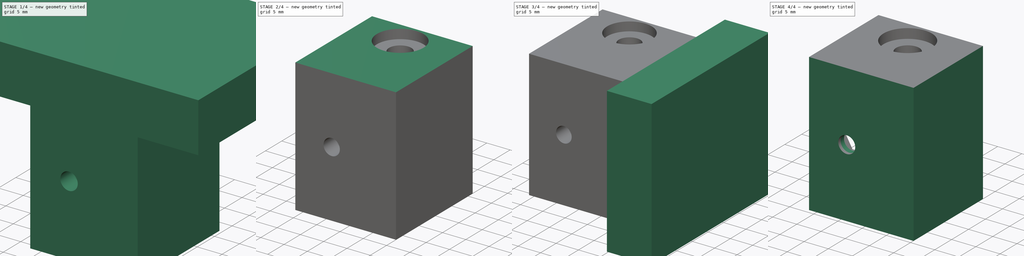
[diagram: build sequence overview — one tinted view per stage of 4, left to right]
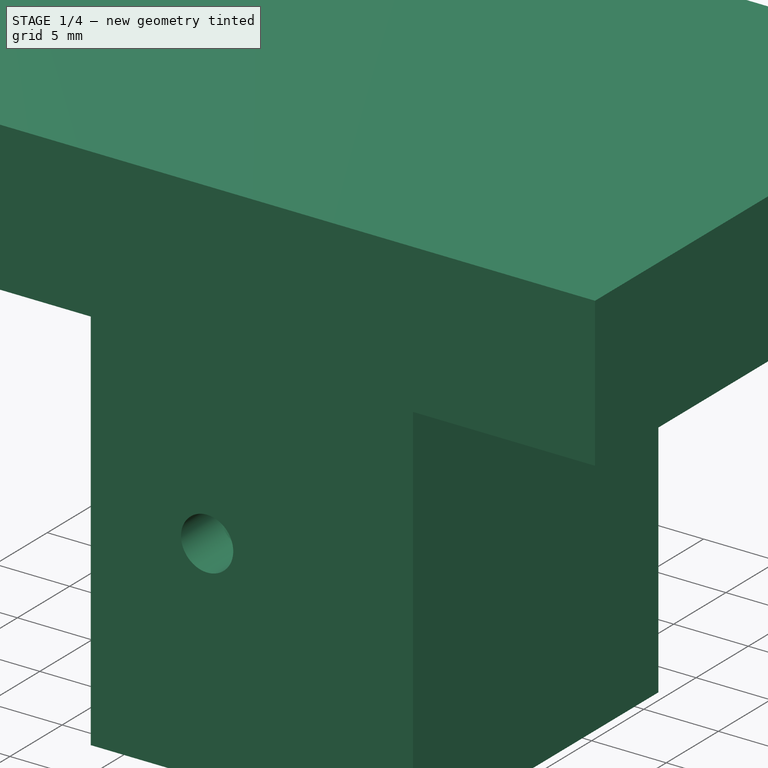
[diagram: stage 1 of 4 — iso view after this stage's code; geometry added in this stage tinted green]
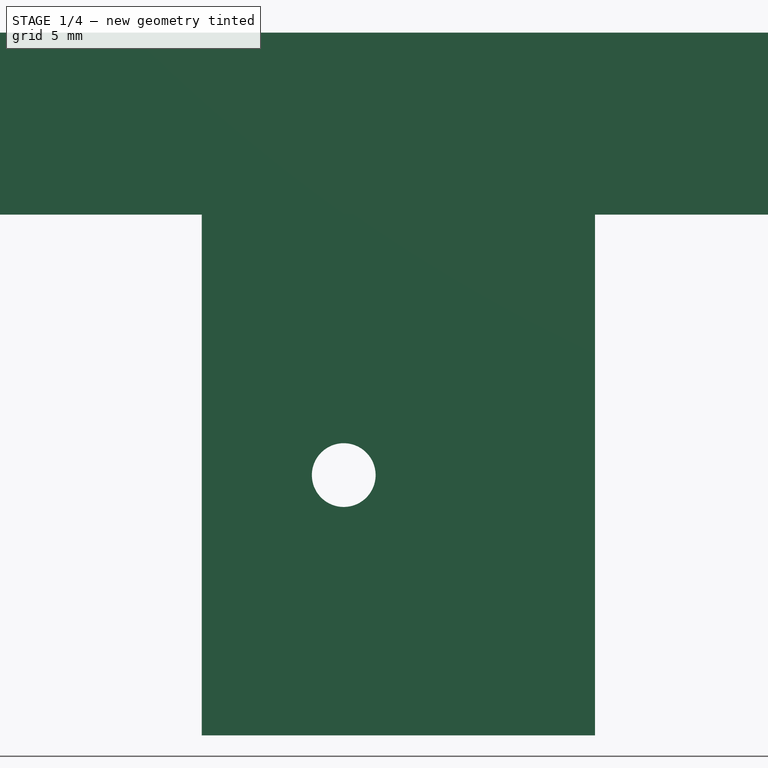
[diagram: stage 1 of 4 — front view after this stage's code; geometry added in this stage tinted green]
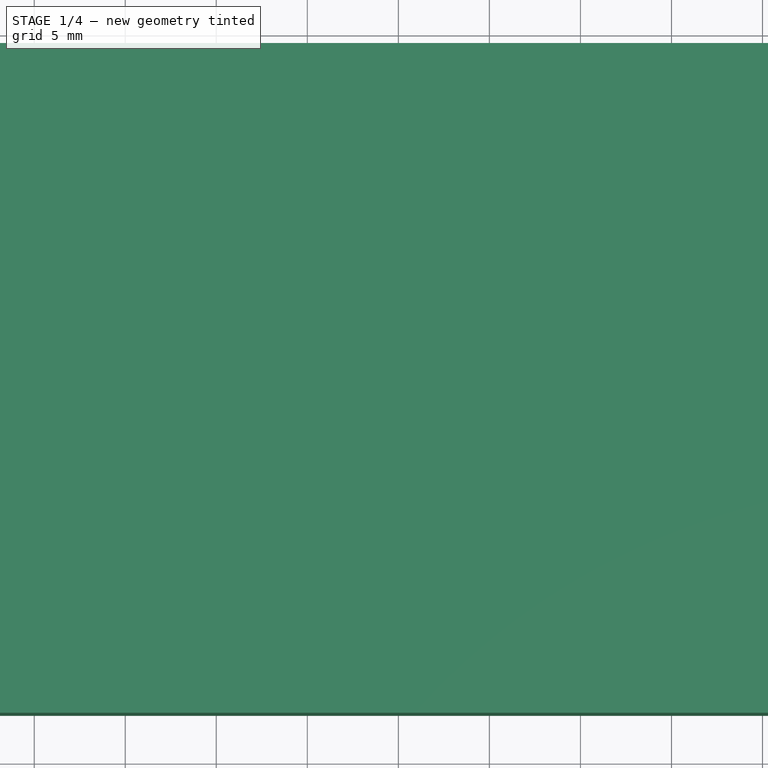
[diagram: stage 1 of 4 — top view after this stage's code; geometry added in this stage tinted green]
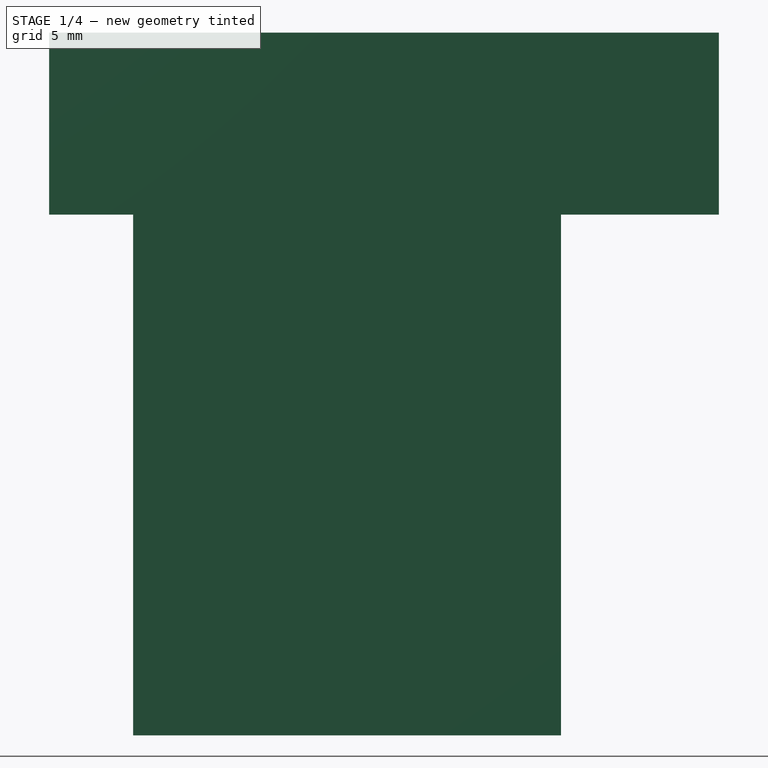
[diagram: stage 1 of 4 — right view after this stage's code; geometry added in this stage tinted green]
FCSTD DOCUMENT  (FreeCAD 2024.1R35694 (Git))
Label: Right_Idler_Cartridge
License: All rights reserved
LicenseURL: http://en.wikipedia.org/wiki/All_rights_reserved
objects: PartDesign::Pad×6, PartDesign::Pocket×5, Sketcher::SketchObject×4, Part::Feature×1, PartDesign::FeatureBase×1, PartDesign::Body×1
note: 29 computed .brp shape members not serialized (recipe doc carries the construction recipe); baked Part::Feature solids carry a one-line shape summary decoded from their .brp

FEATURE [Part::Feature] Part__Feature  label="Right_Idler_Cartridge_001"
  shape: bbox 21.6 x 24.95 x 28.6 mm, 29 faces (baked)
FEATURE [PartDesign::FeatureBase] BaseFeature
  BaseFeature = -> Part__Feature
FEATURE [PartDesign::Pad] Pad
  BaseFeature = -> BaseFeature
  Direction = (0,-617.763,0)
  Length = 3
  Length2 = 10
  Profile = -> BaseFeature [Face28]
  Refine = true
  Type = 0
FEATURE [Sketcher::SketchObject] Sketch
  FullyConstrained = false
  MapMode = 5
  Placement = pos=(0,0,14.2999) rot=(0,0,1;0rad)
  Support = -> [Pad]
  sketch-geometry (4):
    g0: LineSegment StartX=-27.8181 StartY=18.9223 StartZ=0 EndX=-27.8181 EndY=-17.8655 EndZ=0
    g1: LineSegment StartX=-27.8181 StartY=-17.8655 StartZ=0 EndX=26.2406 EndY=-17.8655 EndZ=0
    g2: LineSegment StartX=26.2406 StartY=-17.8655 StartZ=0 EndX=26.2406 EndY=18.9223 EndZ=0
    g3: LineSegment StartX=26.2406 StartY=18.9223 StartZ=0 EndX=-27.8181 EndY=18.9223 EndZ=0
  constraints (8):
    c: Coincident(g0,g1)
    c: Coincident(g1,g2)
    c: Coincident(g2,g3)
    c: Coincident(g3,g0)
    c: Vertical(g0)
    c: Vertical(g2)
    c: Horizontal(g1)
    c: Horizontal(g3)
FEATURE [PartDesign::Pad] Pad001
  BaseFeature = -> Pad
  Direction = (0,0,1)
  Length = 10
  Length2 = 10
  Profile = -> Sketch
  ReferenceAxis = -> Sketch [N_Axis]
  Refine = true
  Type = 0
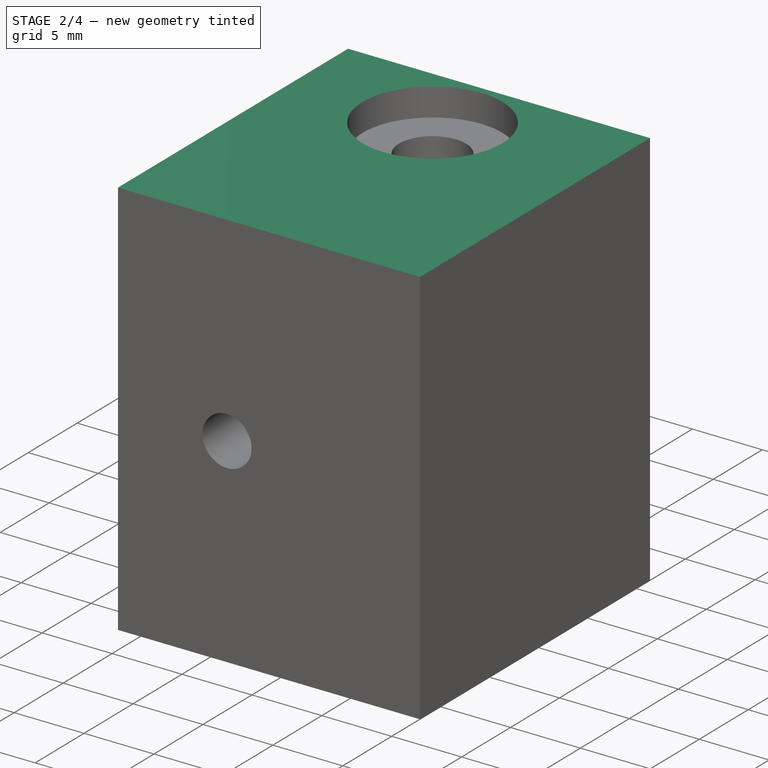
[diagram: stage 2 of 4 — iso view after this stage's code; geometry added in this stage tinted green]
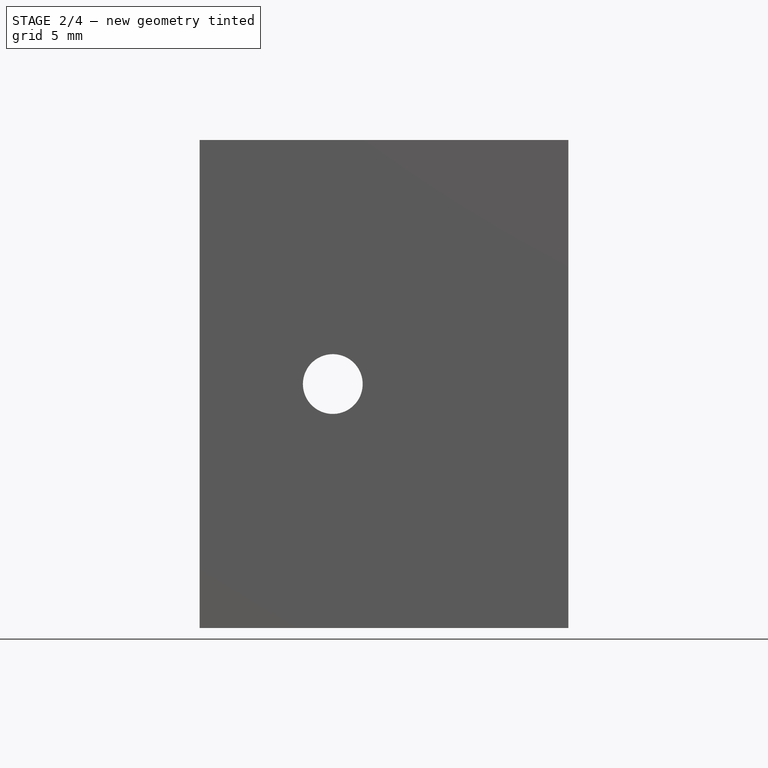
[diagram: stage 2 of 4 — front view after this stage's code; geometry added in this stage tinted green]
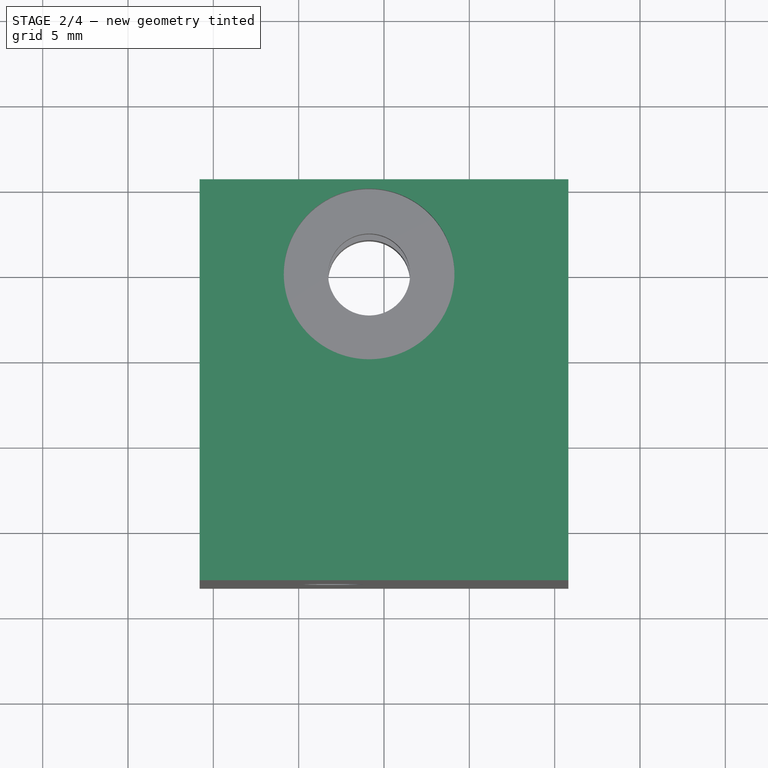
[diagram: stage 2 of 4 — top view after this stage's code; geometry added in this stage tinted green]
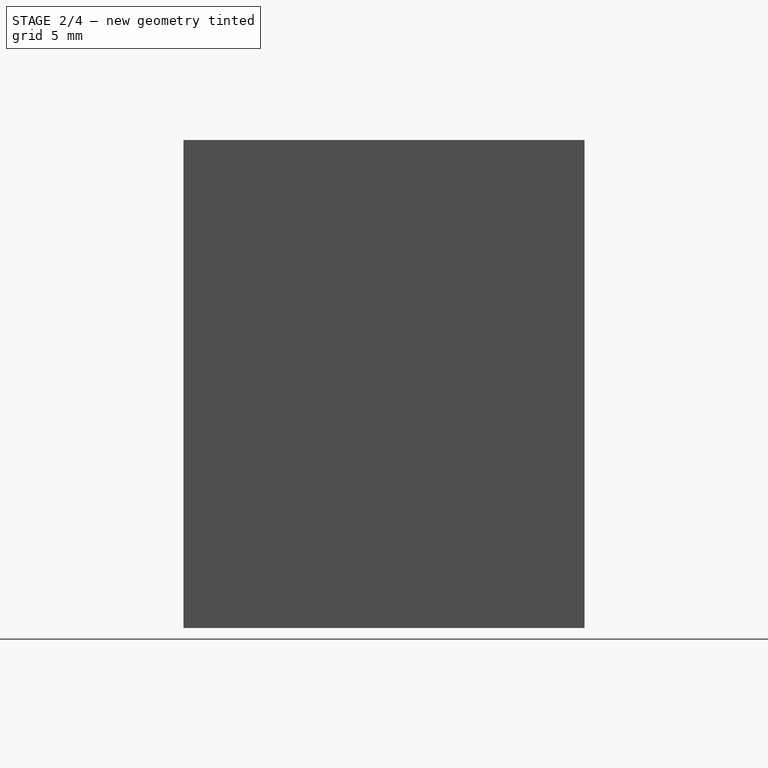
[diagram: stage 2 of 4 — right view after this stage's code; geometry added in this stage tinted green]
FEATURE [PartDesign::Pocket] Pocket
  BaseFeature = -> Pad001
  Direction = (0,0,-1)
  Length = 10
  Length2 = 5
  Profile = -> Pad001 [Face5]
  Refine = true
  Type = 0
FEATURE [Sketcher::SketchObject] Sketch001
  FullyConstrained = false
  MapMode = 5
  Placement = pos=(-10.8001,0,0) rot=(0.57735,-0.57735,-0.57735;2.0944rad)
  Support = -> [Pocket]
  sketch-geometry (4):
    g0: LineSegment StartX=-23.0242 StartY=22.7561 StartZ=0 EndX=-23.0242 EndY=-17.0267 EndZ=0
    g1: LineSegment StartX=-23.0242 StartY=-17.0267 StartZ=0 EndX=19.3043 EndY=-17.0267 EndZ=0
    g2: LineSegment StartX=19.3043 StartY=-17.0267 StartZ=0 EndX=19.3043 EndY=22.7561 EndZ=0
    g3: LineSegment StartX=19.3043 StartY=22.7561 StartZ=0 EndX=-23.0242 EndY=22.7561 EndZ=0
  constraints (8):
    c: Coincident(g0,g1)
    c: Coincident(g1,g2)
    c: Coincident(g2,g3)
    c: Coincident(g3,g0)
    c: Vertical(g0)
    c: Vertical(g2)
    c: Horizontal(g1)
    c: Horizontal(g3)
FEATURE [PartDesign::Pad] Pad002
  BaseFeature = -> Pocket
  Direction = (-1,0,0)
  Length = 10
  Length2 = 10
  Profile = -> Sketch001
  ReferenceAxis = -> Sketch001 [N_Axis]
  Refine = true
  Type = 0
FEATURE [PartDesign::Pocket] Pocket001
  BaseFeature = -> Pad002
  Direction = (1,0,0)
  Length = 10
  Length2 = 5
  Profile = -> Pad002 [Face5]
  Refine = true
  Type = 0
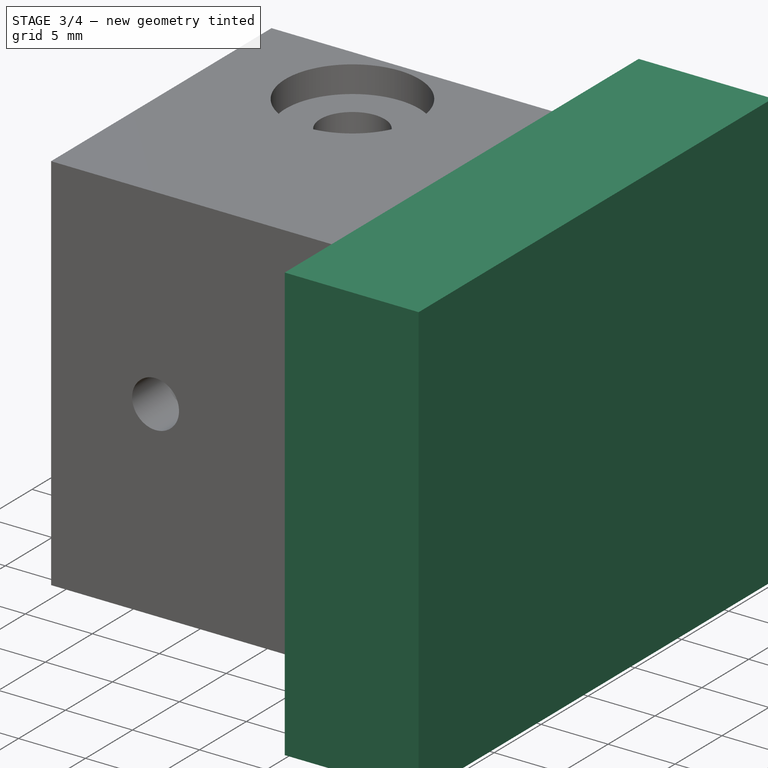
[diagram: stage 3 of 4 — iso view after this stage's code; geometry added in this stage tinted green]
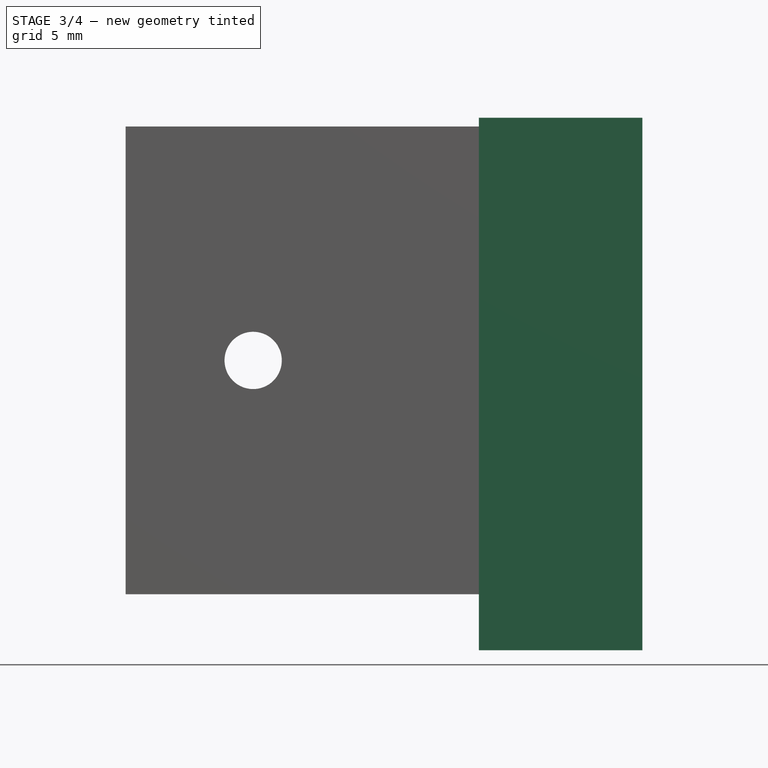
[diagram: stage 3 of 4 — front view after this stage's code; geometry added in this stage tinted green]
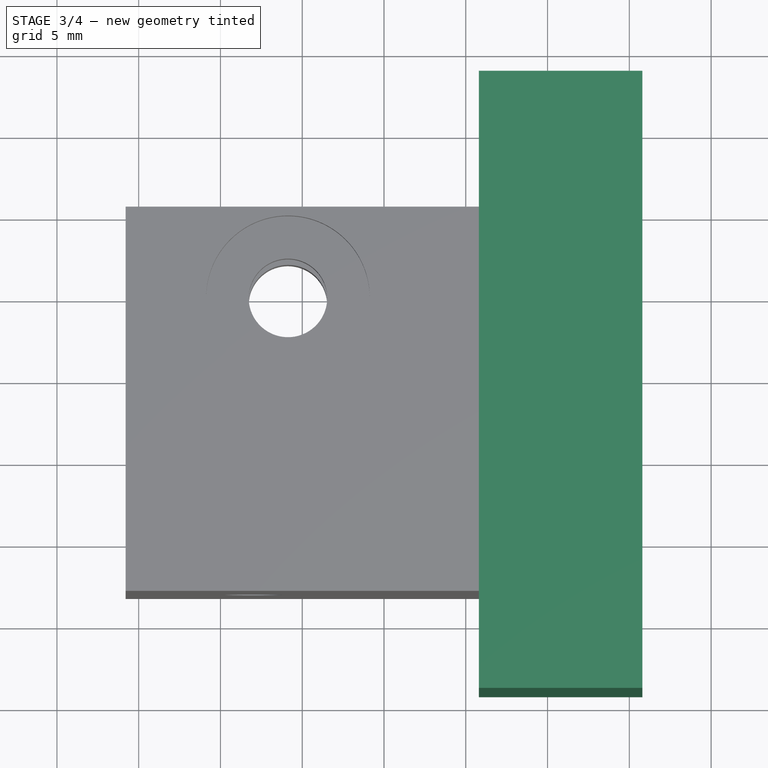
[diagram: stage 3 of 4 — top view after this stage's code; geometry added in this stage tinted green]
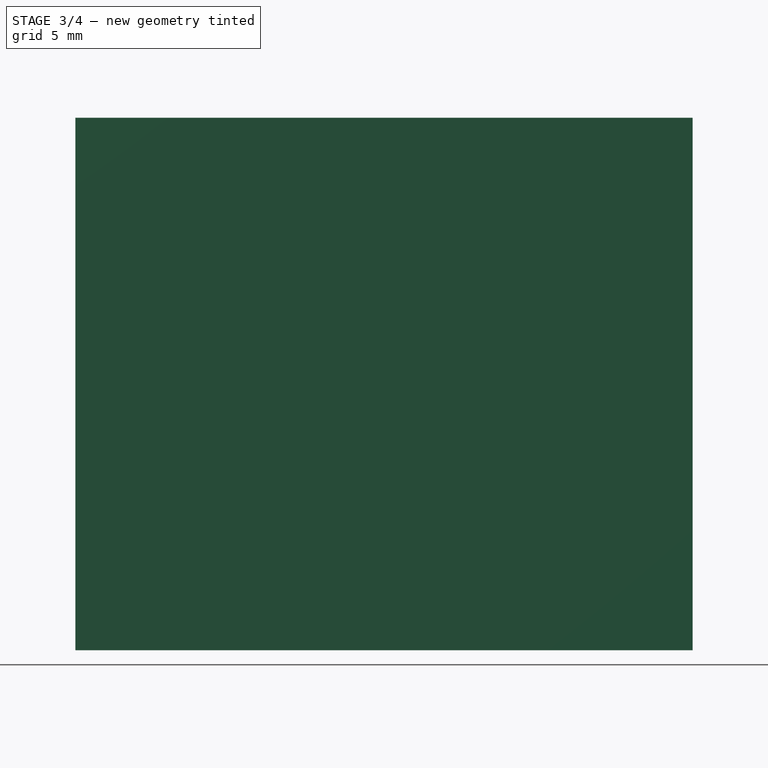
[diagram: stage 3 of 4 — right view after this stage's code; geometry added in this stage tinted green]
FEATURE [Sketcher::SketchObject] Sketch002
  FullyConstrained = false
  MapMode = 5
  Placement = pos=(0,0,-14.3002) rot=(1,0,0;3.14159rad)
  Support = -> [Pocket001]
  sketch-geometry (4):
    g0: LineSegment StartX=-27.9159 StartY=22.1755 StartZ=0 EndX=-27.9159 EndY=-18.955 EndZ=0
    g1: LineSegment StartX=-27.9159 StartY=-18.955 StartZ=0 EndX=22.5488 EndY=-18.955 EndZ=0
    g2: LineSegment StartX=22.5488 StartY=-18.955 StartZ=0 EndX=22.5488 EndY=22.1755 EndZ=0
    g3: LineSegment StartX=22.5488 StartY=22.1755 StartZ=0 EndX=-27.9159 EndY=22.1755 EndZ=0
  constraints (8):
    c: Coincident(g0,g1)
    c: Coincident(g1,g2)
    c: Coincident(g2,g3)
    c: Coincident(g3,g0)
    c: Vertical(g0)
    c: Vertical(g2)
    c: Horizontal(g1)
    c: Horizontal(g3)
FEATURE [PartDesign::Pad] Pad003
  BaseFeature = -> Pocket001
  Direction = (0,0,-1)
  Length = 10
  Length2 = 10
  Profile = -> Sketch002
  ReferenceAxis = -> Sketch002 [N_Axis]
  Refine = true
  Type = 0
FEATURE [PartDesign::Pocket] Pocket002
  BaseFeature = -> Pad003
  Direction = (0,0,1)
  Length = 10
  Length2 = 5
  Profile = -> Pad003 [Face5]
  Refine = true
  Type = 0
FEATURE [Sketcher::SketchObject] Sketch003
  FullyConstrained = false
  MapMode = 5
  Placement = pos=(10.7999,0,0) rot=(0.57735,0.57735,0.57735;2.0944rad)
  Support = -> [Pocket002]
  sketch-geometry (4):
    g0: LineSegment StartX=-19.192 StartY=14.834 StartZ=0 EndX=-19.192 EndY=-17.7225 EndZ=0
    g1: LineSegment StartX=-19.192 StartY=-17.7225 StartZ=0 EndX=18.5467 EndY=-17.7225 EndZ=0
    g2: LineSegment StartX=18.5467 StartY=-17.7225 StartZ=0 EndX=18.5467 EndY=14.834 EndZ=0
    g3: LineSegment StartX=18.5467 StartY=14.834 StartZ=0 EndX=-19.192 EndY=14.834 EndZ=0
  constraints (8):
    c: Coincident(g0,g1)
    c: Coincident(g1,g2)
    c: Coincident(g2,g3)
    c: Coincident(g3,g0)
    c: Vertical(g0)
    c: Vertical(g2)
    c: Horizontal(g1)
    c: Horizontal(g3)
FEATURE [PartDesign::Pad] Pad004
  BaseFeature = -> Pocket002
  Direction = (1,0,0)
  Length = 10
  Length2 = 10
  Profile = -> Sketch003
  ReferenceAxis = -> Sketch003 [N_Axis]
  Refine = true
  Type = 0
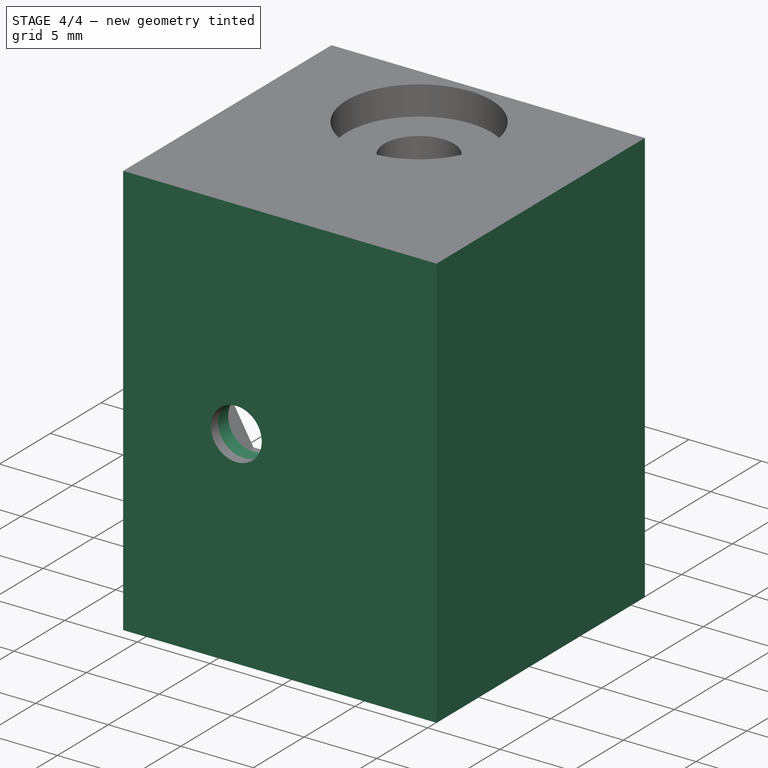
[diagram: stage 4 of 4 — iso view after this stage's code; geometry added in this stage tinted green]
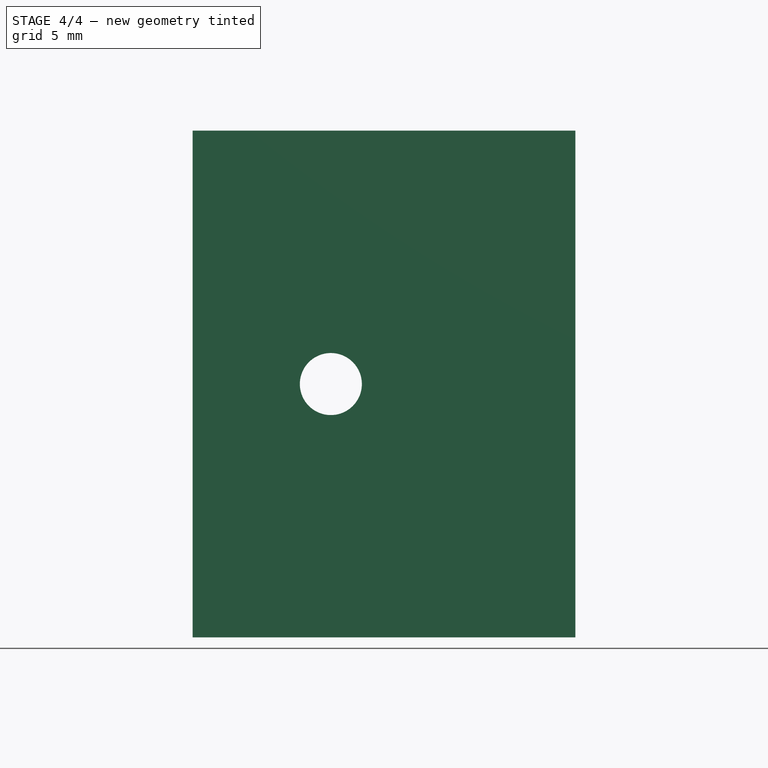
[diagram: stage 4 of 4 — front view after this stage's code; geometry added in this stage tinted green]
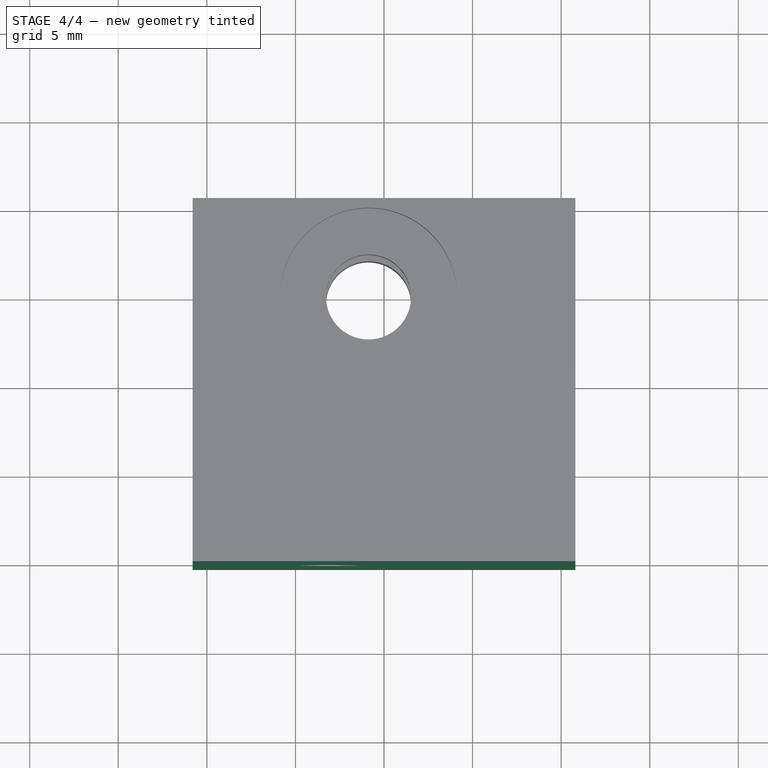
[diagram: stage 4 of 4 — top view after this stage's code; geometry added in this stage tinted green]
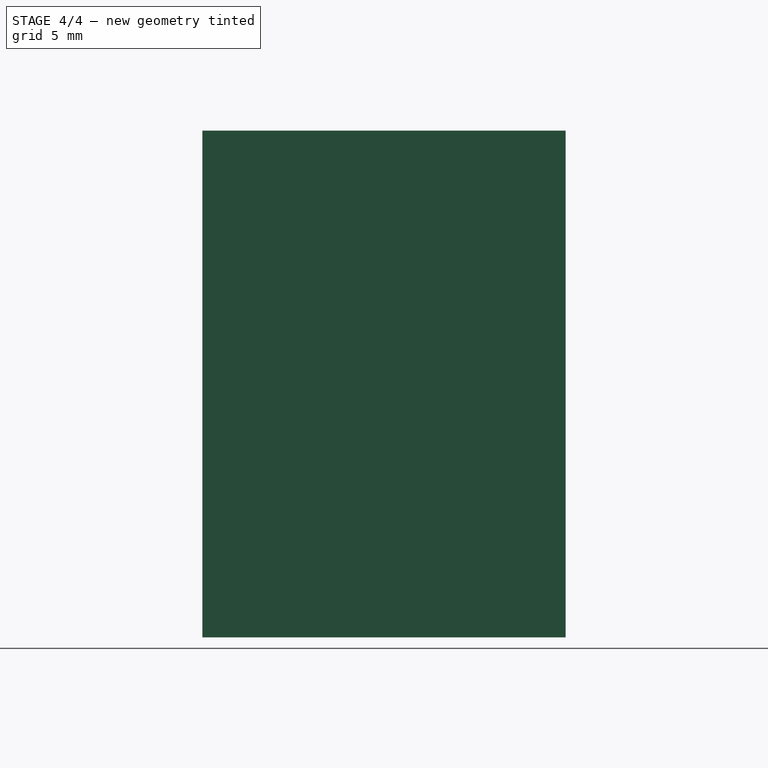
[diagram: stage 4 of 4 — right view after this stage's code; geometry added in this stage tinted green]
FEATURE [PartDesign::Pocket] Pocket003
  BaseFeature = -> Pad004
  Direction = (-1,0,0)
  Length = 10
  Length2 = 5
  Profile = -> Pad004 [Face5]
  Refine = true
  Type = 0
FEATURE [PartDesign::Pocket] Pocket004
  BaseFeature = -> Pocket003
  Direction = (0,617.763,0)
  Length = 3
  Length2 = 5
  Profile = -> Pocket003 [Face5]
  Refine = true
  Type = 0
FEATURE [PartDesign::Pad] Pad005
  BaseFeature = -> Pocket004
  Direction = (0,36.643,0)
  Length = 0.998
  Length2 = 10
  Profile = -> Pocket004 [Face29]
  Refine = true
  Type = 0
FEATURE [PartDesign::Body] Body
  BaseFeature = -> Part__Feature
  Group = -> [BaseFeature,Pad,Sketch,Pad001,Pocket,Sketch001,Pad002,Pocket001,Sketch002,Pad003,Pocket002,Sketch003,Pad004,Pocket003,Pocket004,Pad005]
  Origin = -> Origin
  Tip = -> Pad005
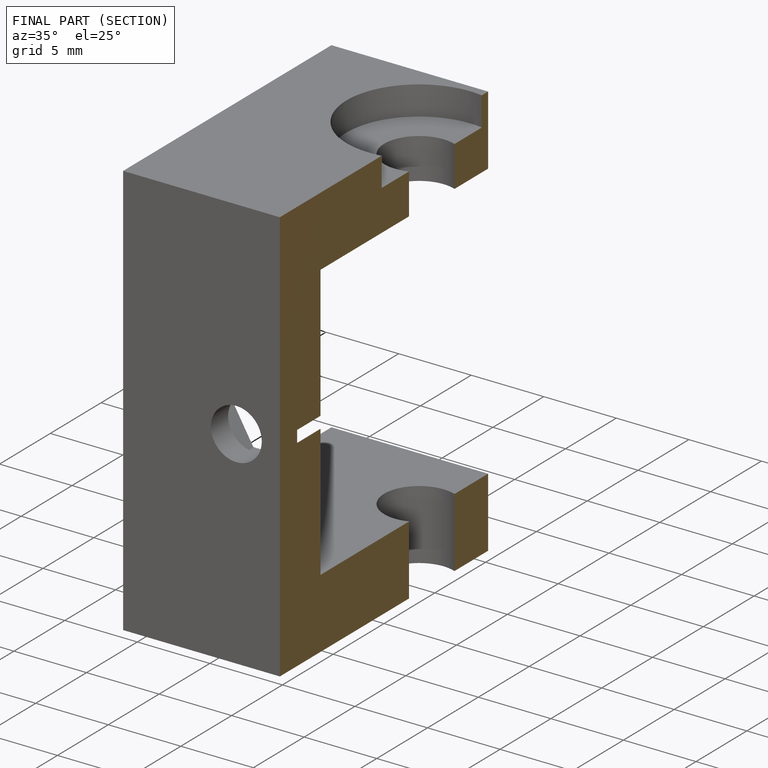
[diagram: finished part — half-section view (interior)]
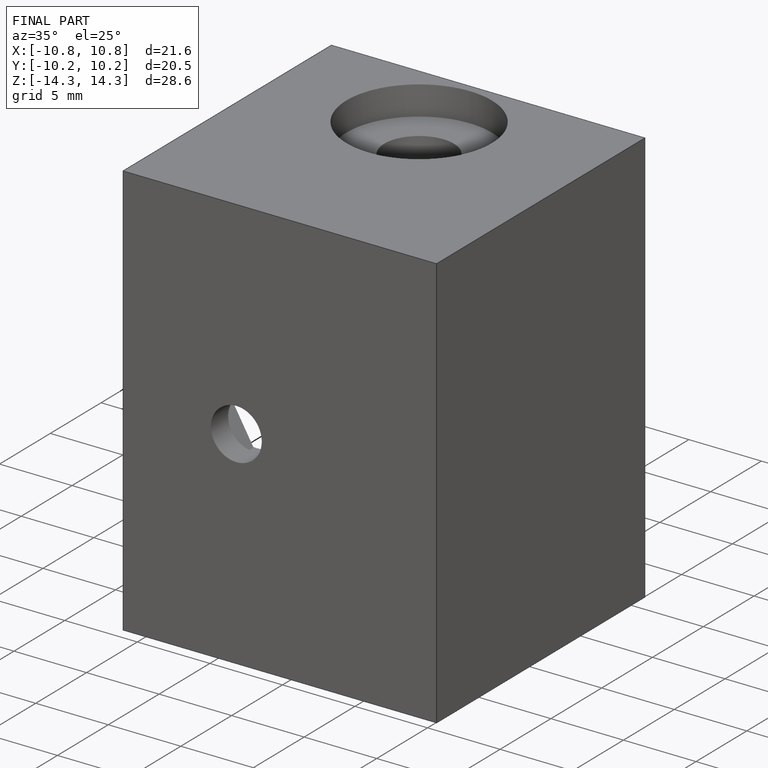
[diagram: finished part — iso view with bounding-box wireframe]
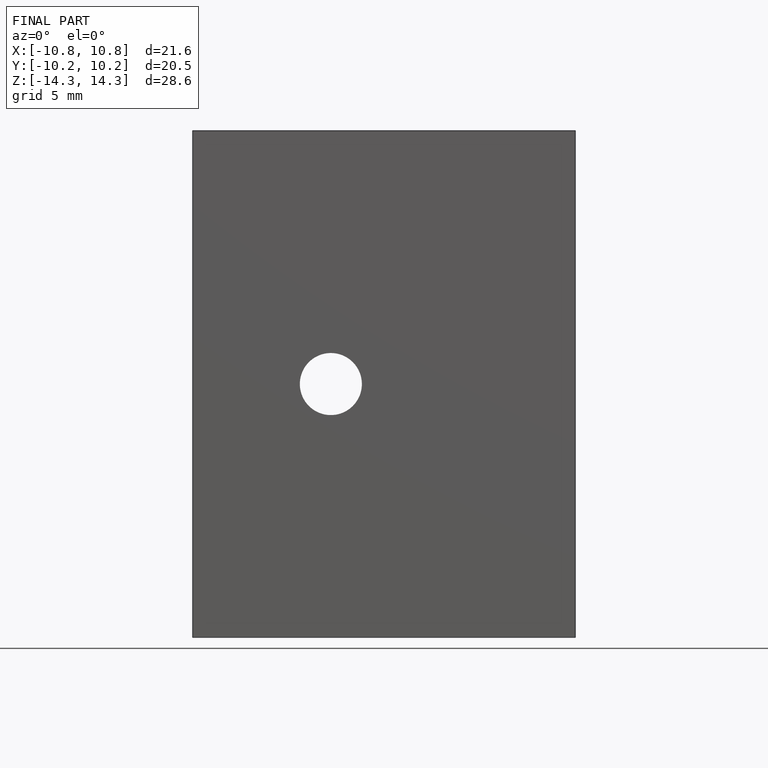
[diagram: finished part — front view with bounding-box wireframe]
